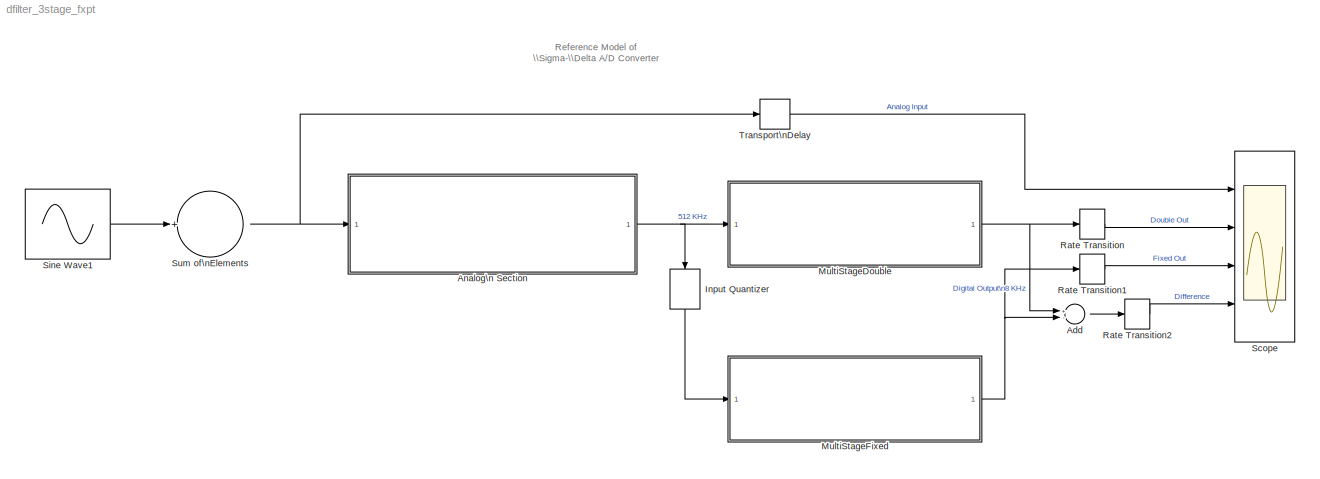
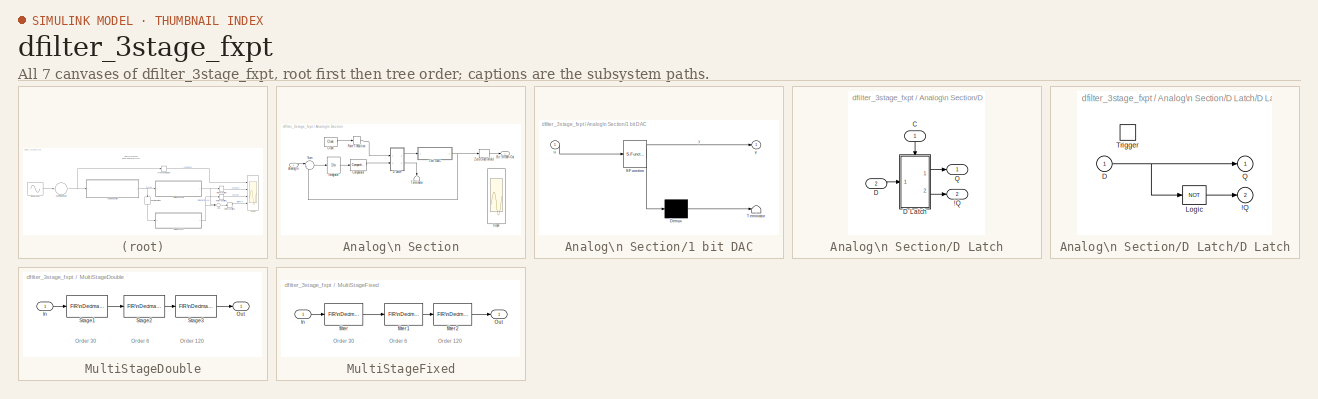
[diagram: thumbnail index - all 7 canvases of the model, root first then tree order]
MODEL dfilter_3stage_fxpt
KIND model
BLOCK [Sum] Add
  InputSameDT = off
  Inputs = +-
  OutDataTypeStr = Inherit: Inherit via internal rule
  Ports = [2, 1]
  SID = 28
  SaturateOnIntegerOverflow = off
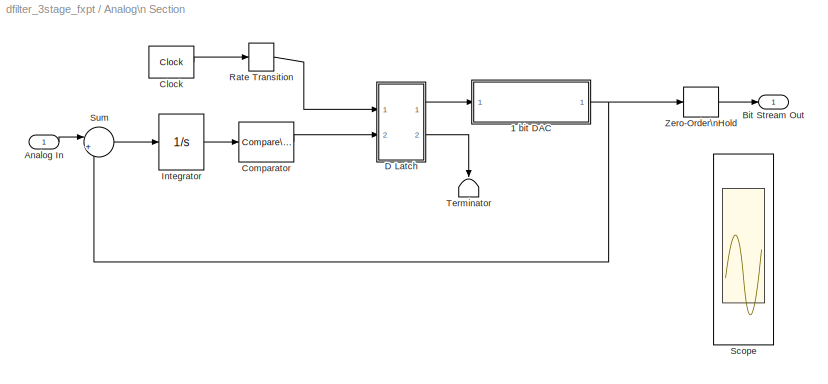
BLOCK [SubSystem] Analog\n Section
  Ports = [1, 1]
  RequestExecContextInheritance = off
  SID = 1145
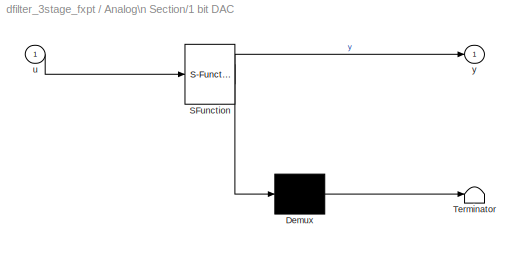
BLOCK [SubSystem] Analog\n Section/1 bit DAC
  ErrorFcn = Stateflow.Translate.translate
  PermitHierarchicalResolution = ExplicitOnly
  Ports = [1, 1]
  RequestExecContextInheritance = off
  SFBlockType = MATLAB Function
  SID = 1147
  TreatAsAtomicUnit = on
BLOCK [Demux] Analog\n Section/1 bit DAC/ Demux 
  Outputs = 1
  Ports = [1, 1]
  SID = 1147::15
BLOCK [S-Function] Analog\n Section/1 bit DAC/ SFunction 
  EnableBusSupport = on
  FunctionName = sf_sfun
  PortCounts = [1 2]
  Ports = [1, 2]
  SID = 1147::14
  Tag = Stateflow S-Function dfilter_3stage_fxpt 1
BLOCK [Terminator] Analog\n Section/1 bit DAC/ Terminator 
  SID = 1147::16
BLOCK [Inport] Analog\n Section/1 bit DAC/u
  IconDisplay = Port number
  SID = 1147::1
BLOCK [Outport] Analog\n Section/1 bit DAC/y
  IconDisplay = Port number
  SID = 1147::5
BLOCK [Inport] Analog\n Section/Analog In
  IconDisplay = Port number
  SID = 1146
BLOCK [Outport] Analog\n Section/Bit Stream Out
  IconDisplay = Port number
  SID = 1157
BLOCK [Reference] Analog\n Section/Clock  REF=simulink_extras/Flip Flops/Clock
  Ports = [0, 1]
  SID = 1148
  SourceBlock = simulink_extras/Flip Flops/Clock
  SourceType = Digital clock
  period = 1/512000
BLOCK [Reference] Analog\n Section/Comparator  REF=simulink/Logic and Bit\nOperations/Compare\nTo Zero
  OutDataTypeStr = boolean
  Ports = [1, 1]
  SID = 1149
  SourceBlock = simulink/Logic and Bit\nOperations/Compare\nTo Zero
  SourceType = Compare To Zero
  ZeroCross = off
  relop = >=
BLOCK [SubSystem] Analog\n Section/D Latch
  AncestorBlock = simulink_extras/Flip Flops/D Latch
  Ports = [2, 2]
  RequestExecContextInheritance = off
  SID = 1150
BLOCK [Outport] Analog\n Section/D Latch/!Q
  IconDisplay = Port number
  InitialOutput = 1
  Port = 2
  SID = 1150:10
BLOCK [Inport] Analog\n Section/D Latch/C
  IconDisplay = Port number
  SID = 1150:1
BLOCK [Inport] Analog\n Section/D Latch/D
  IconDisplay = Port number
  Port = 2
  SID = 1150:2
BLOCK [SubSystem] Analog\n Section/D Latch/D Latch
  Ports = [1, 2, 0, 1]
  RequestExecContextInheritance = off
  SID = 1150:3
  TreatAsAtomicUnit = on
BLOCK [Outport] Analog\n Section/D Latch/D Latch/!Q
  IconDisplay = Port number
  InitialOutput = 1
  Port = 2
  SID = 1150:8
BLOCK [Inport] Analog\n Section/D Latch/D Latch/D
  IconDisplay = Port number
  SID = 1150:4
BLOCK [Logic] Analog\n Section/D Latch/D Latch/Logic
  Inputs = 1
  Operator = NOT
  Ports = [1, 1]
  SID = 1150:6
BLOCK [Outport] Analog\n Section/D Latch/D Latch/Q
  IconDisplay = Port number
  InitialOutput = 0
  SID = 1150:7
BLOCK [TriggerPort] Analog\n Section/D Latch/D Latch/Trigger
  Ports = []
  SID = 1150:5
  StatesWhenEnabling = reset
BLOCK [Outport] Analog\n Section/D Latch/Q
  IconDisplay = Port number
  SID = 1150:9
BLOCK [Integrator] Analog\n Section/Integrator
  Ports = [1, 1]
  SID = 1151
BLOCK [RateTransition] Analog\n Section/Rate Transition
  SID = 1152
BLOCK [Scope] Analog\n Section/Scope
  DataFormat = StructureWithTime
  Floating = off
  LimitDataPoints = off
  NumInputPorts = 4
  Ports = [4]
  SID = 1153
  SampleTime = 0
  SaveName = ScopeData1
  ShowLegends = off
  TimeRange = 0.0175
  YMax = 1~1~1~0.4
  YMin = -1~-1~-0.75~-0.4
  ZoomMode = xonly
BLOCK [Sum] Analog\n Section/Sum
  IconShape = round
  InputSameDT = off
  Inputs = |+-
  OutDataTypeStr = Inherit: Inherit via internal rule
  Ports = [2, 1]
  SID = 1154
  SaturateOnIntegerOverflow = off
BLOCK [Terminator] Analog\n Section/Terminator
  SID = 1155
BLOCK [ZeroOrderHold] Analog\n Section/Zero-Order\nHold
  SID = 1156
  SampleTime = 1/512000
BLOCK [DataTypeConversion] Input Quantizer
  OutDataTypeStr = fixdt(1,2,0)
  RndMeth = Round
  SID = 881
BLOCK [SubSystem] MultiStageDouble
  Ports = [1, 1]
  RequestExecContextInheritance = off
  SID = 22
  Tag = BlockMethodSubSystem
BLOCK [Inport] MultiStageDouble/In
  IconDisplay = Port number
  SID = 23
BLOCK [Outport] MultiStageDouble/Out
  IconDisplay = Port number
  SID = 27
BLOCK [Reference] MultiStageDouble/Stage1  REF=dspmlti4/FIR\nDecimation
  D = 8
  FilterObject = Hm_firdecim
  FilterSource = Specify via dialog
  InputProcessing = Elements as channels (sample based)
  LockScale = off
  Ports = [1, 1]
  SID = 1135
  SourceBlock = dspmlti4/FIR\nDecimation
  SourceType = FIR Decimation
  Tag = BlockMethodSubSystem
  UserData = DataTag0
  UserDataPersistent = on
  accumDataTypeStr = Inherit: Inherit via internal rule
  accumFracLength = 30
  accumLastDataTypeStr = Inherit: Inherit via internal rule
  accumMode = Inherit via internal rule
  accumWordLength = 32
  additionalParams = off
  allowOverrides = off
  filtStruct = Direct form
  firstCoeffDataTypeStr = Inherit: Same word length as input
  firstCoeffFracLength = 15
  firstCoeffLastDataTypeStr = Inherit: Same word length as input
  firstCoeffMax = []
  firstCoeffMin = []
  firstCoeffMode = Same word length as input
  firstCoeffWordLength = 16
  framing = Allow multirate processing
  h = [-0.00111887688497772 -0.00249700636744405 -0.00459514705449605 -0.00695605168661718 -0.00883309346046245 -0.00913347915153677 -0.00658179617561458 0 0.0113580022883622 0.0274930872781109 0.0474730357942702 0.0694361238436743 0.0908217187019734 0.108796639037714 0.120788011385266 0.125 0.120788011385266 0.108796639037714 0.0908217187019734 0.0694361238436743 0.0474730357942702 0.0274930872781109 0...<+167ch>
  inputOffset = 0
  outputBufInitCond = 0
  outputDataTypeStr = Inherit: Same as accumulator
  outputFracLength = 15
  outputLastDataTypeStr = Inherit: Same as accumulator
  outputMax = []
  outputMin = []
  outputMode = Same as accumulator
  outputWordLength = 16
  overflowMode = off
  prodOutputDataTypeStr = Inherit: Inherit via internal rule
  prodOutputFracLength = 30
  prodOutputLastDataTypeStr = Inherit: Inherit via internal rule
  prodOutputMode = Inherit via internal rule
  prodOutputWordLength = 32
  roundingMode = Floor
BLOCK [Reference] MultiStageDouble/Stage2  REF=dspmlti4/FIR\nDecimation
  D = 2
  FilterObject = Hm_firdecim
  FilterSource = Specify via dialog
  InputProcessing = Elements as channels (sample based)
  LockScale = off
  Ports = [1, 1]
  SID = 1136
  SourceBlock = dspmlti4/FIR\nDecimation
  SourceType = FIR Decimation
  Tag = BlockMethodSubSystem
  UserData = DataTag1
  UserDataPersistent = on
  accumDataTypeStr = Inherit: Inherit via internal rule
  accumFracLength = 30
  accumLastDataTypeStr = Inherit: Inherit via internal rule
  accumMode = Inherit via internal rule
  accumWordLength = 32
  additionalParams = off
  allowOverrides = off
  filtStruct = Direct form
  firstCoeffDataTypeStr = Inherit: Same word length as input
  firstCoeffFracLength = 15
  firstCoeffLastDataTypeStr = Inherit: Same word length as input
  firstCoeffMax = []
  firstCoeffMin = []
  firstCoeffMode = Same word length as input
  firstCoeffWordLength = 16
  framing = Allow multirate processing
  h = [-0.0362429732032996 0 0.285766556113462 0.5 0.285766556113462 0 -0.0362429732032996]
  inputOffset = 0
  outputBufInitCond = 0
  outputDataTypeStr = Inherit: Same as accumulator
  outputFracLength = 15
  outputLastDataTypeStr = Inherit: Same as accumulator
  outputMax = []
  outputMin = []
  outputMode = Same as accumulator
  outputWordLength = 16
  overflowMode = off
  prodOutputDataTypeStr = Inherit: Inherit via internal rule
  prodOutputFracLength = 30
  prodOutputLastDataTypeStr = Inherit: Inherit via internal rule
  prodOutputMode = Inherit via internal rule
  prodOutputWordLength = 32
  roundingMode = Floor
BLOCK [Reference] MultiStageDouble/Stage3  REF=dspmlti4/FIR\nDecimation
  D = 4
  FilterObject = Hm_firdecim
  FilterSource = Specify via dialog
  InputProcessing = Elements as channels (sample based)
  LockScale = off
  Ports = [1, 1]
  SID = 1137
  SourceBlock = dspmlti4/FIR\nDecimation
  SourceType = FIR Decimation
  Tag = BlockMethodSubSystem
  UserData = DataTag2
  UserDataPersistent = on
  accumDataTypeStr = Inherit: Inherit via internal rule
  accumFracLength = 30
  accumLastDataTypeStr = Inherit: Inherit via internal rule
  accumMode = Inherit via internal rule
  accumWordLength = 32
  additionalParams = off
  allowOverrides = off
  filtStruct = Direct form
  firstCoeffDataTypeStr = Inherit: Same word length as input
  firstCoeffFracLength = 15
  firstCoeffLastDataTypeStr = Inherit: Same word length as input
  firstCoeffMax = []
  firstCoeffMin = []
  firstCoeffMode = Same word length as input
  firstCoeffWordLength = 16
  framing = Allow multirate processing
  h = [0 8.47606608023409e-005 0.000153854327095139 0.000136317924712582 0 -0.00020305751735692 -0.00034351785801204 -0.000287512764448896 0 0.000392439332338858 0.000641352526162708 0.000520829654785754 0 -0.000675934489470505 -0.00108130615140325 -0.000861294784663789 0 0.00108078812901365 0.00170363859454544 0.00133869559937353 0 -0.00163979704643895 -0.00255719195777936 -0.00198950613899863 0 0.0023...<+1494ch>
  inputOffset = 0
  outputBufInitCond = 0
  outputDataTypeStr = Inherit: Same as accumulator
  outputFracLength = 15
  outputLastDataTypeStr = Inherit: Same as accumulator
  outputMax = []
  outputMin = []
  outputMode = Same as accumulator
  outputWordLength = 16
  overflowMode = off
  prodOutputDataTypeStr = Inherit: Inherit via internal rule
  prodOutputFracLength = 30
  prodOutputLastDataTypeStr = Inherit: Inherit via internal rule
  prodOutputMode = Inherit via internal rule
  prodOutputWordLength = 32
  roundingMode = Floor
BLOCK [SubSystem] MultiStageFixed
  Ports = [1, 1]
  RequestExecContextInheritance = off
  SID = 875
  Tag = BlockMethodSubSystem
BLOCK [Inport] MultiStageFixed/In
  IconDisplay = Port number
  SID = 876
BLOCK [Outport] MultiStageFixed/Out
  IconDisplay = Port number
  SID = 880
BLOCK [Reference] MultiStageFixed/filter  REF=dspmlti4/FIR\nDecimation
  D = 8
  FilterObject = Hm_firdecim
  FilterSource = Specify via dialog
  InputProcessing = Elements as channels (sample based)
  LockScale = off
  Ports = [1, 1]
  SID = 1126
  SourceBlock = dspmlti4/FIR\nDecimation
  SourceType = FIR Decimation
  UserData = DataTag3
  UserDataPersistent = on
  accumDataTypeStr = fixdt(1,32,29)
  accumFracLength = 29
  accumLastDataTypeStr = fixdt(1,32,29)
  accumMode = Binary point scaling
  accumWordLength = 32
  additionalParams = off
  allowOverrides = off
  filtStruct = Direct form
  firstCoeffDataTypeStr = fixdt(1,16,17)
  firstCoeffFracLength = 17
  firstCoeffLastDataTypeStr = fixdt(1,16,17)
  firstCoeffMax = []
  firstCoeffMin = []
  firstCoeffMode = Binary point scaling
  firstCoeffWordLength = 16
  framing = Allow multirate processing
  h = [-0.00112152099609375 -0.00249481201171875 -0.0045928955078125 -0.0069580078125 -0.0088348388671875 -0.00913238525390625 -0.00658416748046875 0 0.0113601684570313 0.027496337890625 0.0474700927734375 0.0694351196289063 0.0908203125 0.108795166015625 0.12078857421875 0.125 0.12078857421875 0.108795166015625 0.0908203125 0.0694351196289063 0.0474700927734375 0.027496337890625 0.0113601684570313 0 -0...<+139ch>
  inputOffset = 0
  outputBufInitCond = 0
  outputDataTypeStr = fixdt(1,16,15)
  outputFracLength = 15
  outputLastDataTypeStr = fixdt(1,16,15)
  outputMax = []
  outputMin = []
  outputMode = Binary point scaling
  outputWordLength = 16
  overflowMode = off
  prodOutputDataTypeStr = fixdt(1,32,29)
  prodOutputFracLength = 29
  prodOutputLastDataTypeStr = fixdt(1,32,29)
  prodOutputMode = Binary point scaling
  prodOutputWordLength = 32
  roundingMode = Convergent
BLOCK [Reference] MultiStageFixed/filter1  REF=dspmlti4/FIR\nDecimation
  D = 2
  FilterObject = Hm_firdecim
  FilterSource = Specify via dialog
  InputProcessing = Elements as channels (sample based)
  LockScale = off
  Ports = [1, 1]
  SID = 1127
  SourceBlock = dspmlti4/FIR\nDecimation
  SourceType = FIR Decimation
  UserData = DataTag4
  UserDataPersistent = on
  accumDataTypeStr = fixdt(1,32,29)
  accumFracLength = 29
  accumLastDataTypeStr = fixdt(1,32,29)
  accumMode = Binary point scaling
  accumWordLength = 32
  additionalParams = off
  allowOverrides = off
  filtStruct = Direct form
  firstCoeffDataTypeStr = fixdt(1,16,15)
  firstCoeffFracLength = 15
  firstCoeffLastDataTypeStr = fixdt(1,16,15)
  firstCoeffMax = []
  firstCoeffMin = []
  firstCoeffMode = Binary point scaling
  firstCoeffWordLength = 16
  framing = Allow multirate processing
  h = [-0.0362548828125 0 0.2857666015625 0.5 0.2857666015625 0 -0.0362548828125]
  inputOffset = 0
  outputBufInitCond = 0
  outputDataTypeStr = fixdt(1,16,15)
  outputFracLength = 15
  outputLastDataTypeStr = fixdt(1,16,15)
  outputMax = []
  outputMin = []
  outputMode = Binary point scaling
  outputWordLength = 16
  overflowMode = off
  prodOutputDataTypeStr = fixdt(1,32,29)
  prodOutputFracLength = 29
  prodOutputLastDataTypeStr = fixdt(1,32,29)
  prodOutputMode = Binary point scaling
  prodOutputWordLength = 32
  roundingMode = Convergent
BLOCK [Reference] MultiStageFixed/filter2  REF=dspmlti4/FIR\nDecimation
  D = 4
  FilterObject = Hm_firdecim
  FilterSource = Specify via dialog
  InputProcessing = Elements as channels (sample based)
  LockScale = off
  Ports = [1, 1]
  SID = 1128
  SourceBlock = dspmlti4/FIR\nDecimation
  SourceType = FIR Decimation
  UserData = DataTag5
  UserDataPersistent = on
  accumDataTypeStr = fixdt(1,32,29)
  accumFracLength = 29
  accumLastDataTypeStr = fixdt(1,32,29)
  accumMode = Binary point scaling
  accumWordLength = 32
  additionalParams = off
  allowOverrides = off
  filtStruct = Direct form
  firstCoeffDataTypeStr = fixdt(1,16,16)
  firstCoeffFracLength = 16
  firstCoeffLastDataTypeStr = fixdt(1,16,16)
  firstCoeffMax = []
  firstCoeffMin = []
  firstCoeffMode = Binary point scaling
  firstCoeffWordLength = 16
  framing = Allow multirate processing
  h = [0 9.1552734375e-005 0.000152587890625 0.0001373291015625 0 -0.0001983642578125 -0.0003509521484375 -0.0002899169921875 0 0.000396728515625 0.000640869140625 0.000518798828125 0 -0.00067138671875 -0.0010833740234375 -0.0008544921875 0 0.0010833740234375 0.001708984375 0.0013427734375 0 -0.0016326904296875 -0.0025634765625 -0.001983642578125 0 0.0023956298828125 0.0037078857421875 0.002853393554687...<+1310ch>
  inputOffset = 0
  outputBufInitCond = 0
  outputDataTypeStr = fixdt(1,16,15)
  outputFracLength = 15
  outputLastDataTypeStr = fixdt(1,16,15)
  outputMax = []
  outputMin = []
  outputMode = Binary point scaling
  outputWordLength = 16
  overflowMode = off
  prodOutputDataTypeStr = fixdt(1,32,29)
  prodOutputFracLength = 29
  prodOutputLastDataTypeStr = fixdt(1,32,29)
  prodOutputMode = Binary point scaling
  prodOutputWordLength = 32
  roundingMode = Convergent
BLOCK [RateTransition] Rate Transition
  SID = 887
BLOCK [RateTransition] Rate Transition1
  SID = 888
BLOCK [RateTransition] Rate Transition2
  SID = 889
BLOCK [Scope] Scope
  DataFormat = StructureWithTime
  Floating = off
  LimitDataPoints = off
  NumInputPorts = 4
  Ports = [4]
  SID = 44
  SampleTime = 0
  ShowLegends = off
  TimeRange = 0.0175
  YMax = 1~1~1~0.4
  YMin = -1~-1~-0.75~-0.4
  ZoomMode = xonly
BLOCK [Sin] Sine Wave1
  Amplitude = 0.5
  Frequency = 2*pi*[1500 1750]
  Ports = [0, 1]
  SID = 45
  SampleTime = 0
BLOCK [Sum] Sum of\nElements
  InputSameDT = off
  Inputs = +
  OutDataTypeStr = Inherit: Inherit via internal rule
  Ports = [1, 1]
  SID = 46
  SaturateOnIntegerOverflow = off
BLOCK [TransportDelay] Transport\nDelay
  DelayTime = (1/512e3*(31/2))+(8/512e3*(7/2))+(16/512e3*(121/2))
  Ports = [1, 1]
  SID = 47
ANNOTATION (root): Reference Model of \n\\Sigma-\\Delta A/D Converter
ANNOTATION MultiStageDouble: Order 120
ANNOTATION MultiStageDouble: Order 30
ANNOTATION MultiStageDouble: Order 6
ANNOTATION MultiStageFixed: Order 120
ANNOTATION MultiStageFixed: Order 30
ANNOTATION MultiStageFixed: Order 6
LINE Add:1 -> Rate Transition2:1
LINE Analog\n Section/1 bit DAC/ Demux :1 -> Analog\n Section/1 bit DAC/ Terminator :1
LINE Analog\n Section/1 bit DAC/ SFunction :1 -> Analog\n Section/1 bit DAC/ Demux :1
LINE Analog\n Section/1 bit DAC/ SFunction :2 -> Analog\n Section/1 bit DAC/y:1
LINE Analog\n Section/1 bit DAC/u:1 -> Analog\n Section/1 bit DAC/ SFunction :1
NET Analog\n Section/1 bit DAC:1 -> Analog\n Section/Sum:2, Analog\n Section/Zero-Order\nHold:1
LINE Analog\n Section/Analog In:1 -> Analog\n Section/Sum:1
LINE Analog\n Section/Clock:1 -> Analog\n Section/Rate Transition:1
LINE Analog\n Section/Comparator:1 -> Analog\n Section/D Latch:2
LINE Analog\n Section/D Latch/C:1 -> Analog\n Section/D Latch/D Latch:trigger
NET Analog\n Section/D Latch/D Latch/D:1 -> Analog\n Section/D Latch/D Latch/Logic:1, Analog\n Section/D Latch/D Latch/Q:1
LINE Analog\n Section/D Latch/D Latch/Logic:1 -> Analog\n Section/D Latch/D Latch/!Q:1
LINE Analog\n Section/D Latch/D Latch:1 -> Analog\n Section/D Latch/Q:1
LINE Analog\n Section/D Latch/D Latch:2 -> Analog\n Section/D Latch/!Q:1
LINE Analog\n Section/D Latch/D:1 -> Analog\n Section/D Latch/D Latch:1
LINE Analog\n Section/D Latch:1 -> Analog\n Section/1 bit DAC:1
LINE Analog\n Section/D Latch:2 -> Analog\n Section/Terminator:1
LINE Analog\n Section/Integrator:1 -> Analog\n Section/Comparator:1
LINE Analog\n Section/Rate Transition:1 -> Analog\n Section/D Latch:1
LINE Analog\n Section/Sum:1 -> Analog\n Section/Integrator:1
LINE Analog\n Section/Zero-Order\nHold:1 -> Analog\n Section/Bit Stream Out:1
NET Analog\n Section:1 -> Input Quantizer:1, MultiStageDouble:1
LINE Input Quantizer:1 -> MultiStageFixed:1
LINE MultiStageDouble/In:1 -> MultiStageDouble/Stage1:1
LINE MultiStageDouble/Stage1:1 -> MultiStageDouble/Stage2:1
LINE MultiStageDouble/Stage2:1 -> MultiStageDouble/Stage3:1
LINE MultiStageDouble/Stage3:1 -> MultiStageDouble/Out:1
NET MultiStageDouble:1 -> Add:1, Rate Transition:1
LINE MultiStageFixed/In:1 -> MultiStageFixed/filter:1
LINE MultiStageFixed/filter1:1 -> MultiStageFixed/filter2:1
LINE MultiStageFixed/filter2:1 -> MultiStageFixed/Out:1
LINE MultiStageFixed/filter:1 -> MultiStageFixed/filter1:1
NET MultiStageFixed:1 -> Add:2, Rate Transition1:1
LINE Rate Transition1:1 -> Scope:3
LINE Rate Transition2:1 -> Scope:4
LINE Rate Transition:1 -> Scope:2
LINE Sine Wave1:1 -> Sum of\nElements:1
NET Sum of\nElements:1 -> Analog\n Section:1, Transport\nDelay:1
LINE Transport\nDelay:1 -> Scope:1
note: NET lines group one-source signal fan-out (src -> all destinations, sorted); 1:1 wires keep LINE
CHART Analog\n Section/1 bit DAC states=1 transitions=1
  STATE_LABEL 'eML_blk_kernel()'
